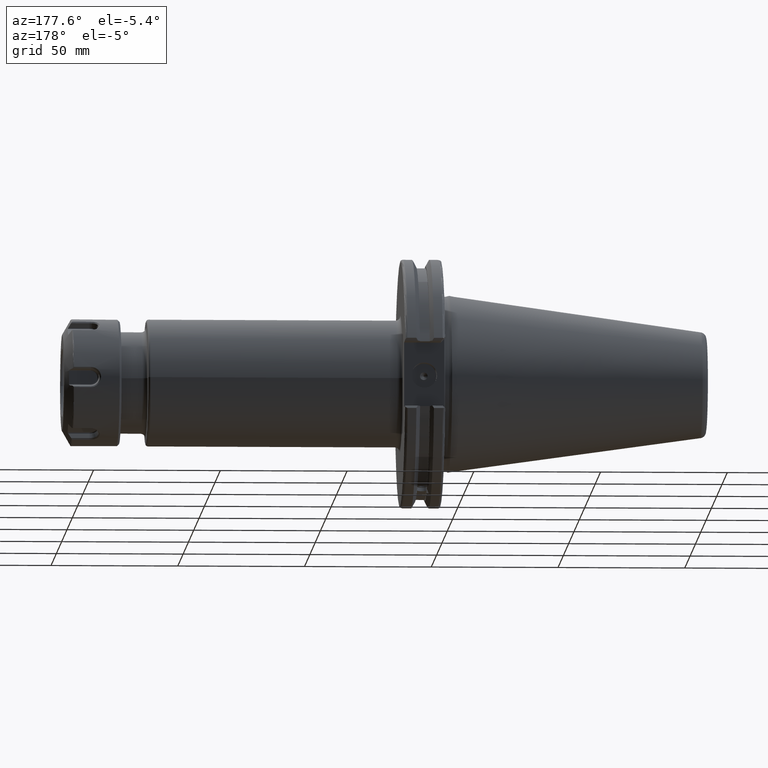
[diagram: clean part render]
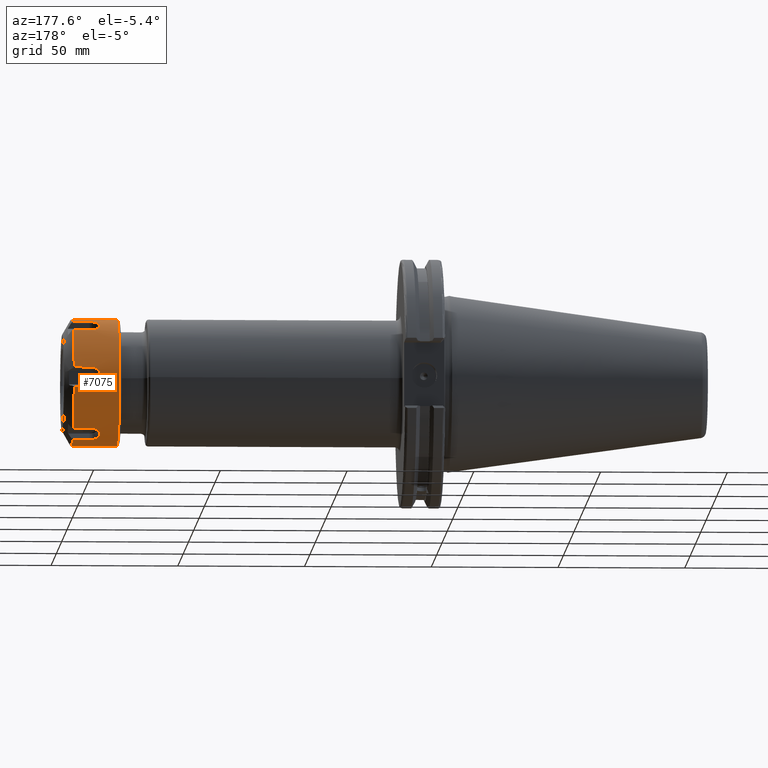
[diagram: same view with one face highlighted and labeled with its STEP entity id]
A machine part, auxiliary view. The second image highlights one B-rep face of the part: STEP entity #7075.
In plain terms, the highlighted cylindrical surface (partial cylindrical patch) has radius 25 mm, axis along (1, 0, 0).
Its self-contained STEP definition (entity closure, byte-faithful):
#5279=DIRECTION('',(1.E0,1.471777969761E-10,3.550491998354E-12));
#5280=VECTOR('',#5279,1.794722325033E1);
#5281=CARTESIAN_POINT('',(-1.045000000006E1,-2.639449818687E-9,
2.499999999994E1));
#5282=LINE('',#5281,#5280);
#5382=CARTESIAN_POINT('',(-1.045E1,0.E0,0.E0));
#5383=DIRECTION('',(-1.E0,0.E0,0.E0));
#5384=DIRECTION('',(0.E0,0.E0,1.E0));
#5385=AXIS2_PLACEMENT_3D('',#5382,#5383,#5384);
#5387=DIRECTION('',(1.E0,-1.471774747269E-10,-3.550491998354E-12));
#5388=VECTOR('',#5387,1.794722325033E1);
#5389=CARTESIAN_POINT('',(-1.045000000006E1,2.639441489808E-9,
-2.499999999994E1));
#5390=LINE('',#5389,#5388);
#5391=CARTESIAN_POINT('',(7.497223250267E0,0.E0,0.E0));
#5392=DIRECTION('',(-1.E0,0.E0,0.E0));
#5393=DIRECTION('',(0.E0,3.560136032912E-1,-9.344807725532E-1));
#5394=AXIS2_PLACEMENT_3D('',#5391,#5392,#5393);
#5396=DIRECTION('',(1.E0,2.171785744726E-10,3.807106787261E-11));
#5397=VECTOR('',#5396,6.647223598116E0);
#5398=CARTESIAN_POINT('',(8.499996521519E-1,8.900340080836E0,
-2.336201931408E1));
#5399=LINE('',#5398,#5397);
#5400=CARTESIAN_POINT('',(8.499998095868E-1,1.578193216884E1,
-1.938893026991E1));
#5401=CARTESIAN_POINT('',(5.804276598713E-1,1.578263415606E1,
-1.938810555219E1));
#5402=CARTESIAN_POINT('',(3.497745150192E-2,1.573772937441E1,
-1.942516223403E1));
#5403=CARTESIAN_POINT('',(-7.572508172466E-1,1.553618784238E1,
-1.958731775441E1));
#5404=CARTESIAN_POINT('',(-1.478671832184E0,1.520520383264E1,
-1.984649592472E1));
#5405=CARTESIAN_POINT('',(-2.102975464694E0,1.475188754799E1,
-2.018696890391E1));
#5406=CARTESIAN_POINT('',(-2.595479421681E0,1.419404177156E1,
-2.058416804918E1));
#5407=CARTESIAN_POINT('',(-2.934593644477E0,1.355377538557E1,
-2.101211162094E1));
#5408=CARTESIAN_POINT('',(-3.106329223720E0,1.285763273974E1,
-2.144557989363E1));
#5409=CARTESIAN_POINT('',(-3.105120606662E0,1.213327639742E1,
-2.186355896464E1));
#5410=CARTESIAN_POINT('',(-2.930858672389E0,1.140995114674E1,
-2.224918200149E1));
#5411=CARTESIAN_POINT('',(-2.589759746298E0,1.072020173764E1,
-2.258884274541E1));
#5412=CARTESIAN_POINT('',(-2.094180856959E0,1.009768614455E1,
-2.287285564324E1));
#5413=CARTESIAN_POINT('',(-1.470915905285E0,9.579624684318E0,
-2.309354629186E1));
#5414=CARTESIAN_POINT('',(-7.433752642320E-1,9.188952477122E0,
-2.325078642809E1));
#5415=CARTESIAN_POINT('',(4.813141884005E-2,8.951677214097E0,
-2.334266853764E1));
#5416=CARTESIAN_POINT('',(5.863145131314E-1,8.899245844633E0,
-2.336221111225E1));
#5417=CARTESIAN_POINT('',(8.499996521519E-1,8.900340080836E0,
-2.336201931408E1));
#5419=DIRECTION('',(-1.E0,7.459753134974E-11,8.763849718101E-11));
#5420=VECTOR('',#5419,6.647223440681E0);
#5421=CARTESIAN_POINT('',(7.497223250267E0,1.578193216834E1,-1.938893027049E1));
#5422=LINE('',#5421,#5420);
#5423=DIRECTION('',(1.E0,-7.310370522877E-11,-1.968159154923E-10));
#5424=VECTOR('',#5423,6.647222910959E0);
#5425=CARTESIAN_POINT('',(8.500003393086E-1,2.468227225111E1,
-3.973089042032E0));
#5426=LINE('',#5425,#5424);
#5427=CARTESIAN_POINT('',(8.500003664810E-1,2.468227225113E1,3.973089041852E0));
#5428=CARTESIAN_POINT('',(5.810062866739E-1,2.468189720453E1,3.974181346559E0));
#5429=CARTESIAN_POINT('',(3.592730096718E-2,2.469151998657E1,3.916871727499E0));
#5430=CARTESIAN_POINT('',(-7.567662073299E-1,2.473117136168E1,
3.661325365234E0));
#5431=CARTESIAN_POINT('',(-1.478328523432E0,2.479013853051E1,3.245097869916E0));
#5432=CARTESIAN_POINT('',(-2.102800323418E0,2.485834914468E1,2.682239738588E0));
#5433=CARTESIAN_POINT('',(-2.595425362412E0,2.492342539761E1,2.000428193022E0));
#5434=CARTESIAN_POINT('',(-2.934593305629E0,2.497390998204E1,1.231880301371E0));
#5435=CARTESIAN_POINT('',(-3.106344504538E0,2.500123582435E1,
4.121707151323E-1));
#5436=CARTESIAN_POINT('',(-3.105107534858E0,2.500103356012E1,
-4.242359057363E-1));
#5437=CARTESIAN_POINT('',(-2.930783158085E0,2.497332051460E1,
-1.243541171085E0));
#5438=CARTESIAN_POINT('',(-2.589570848388E0,2.492258548805E1,
-2.010792539303E0));
#5439=CARTESIAN_POINT('',(-2.093893803251E0,2.485728207190E1,
-2.691900621833E0));
#5440=CARTESIAN_POINT('',(-1.470392990893E0,2.478935587659E1,
-3.250994948892E0));
#5441=CARTESIAN_POINT('',(-7.423429645591E-1,2.473017899476E1,
-3.667985760684E0));
#5442=CARTESIAN_POINT('',(4.887753202312E-2,2.469116292488E1,
-3.919074629860E0));
#5443=CARTESIAN_POINT('',(5.865725475850E-1,2.468189497637E1,
-3.974104813249E0));
#5444=CARTESIAN_POINT('',(8.500003393086E-1,2.468227225111E1,
-3.973089042032E0));
#5446=DIRECTION('',(-1.E0,7.686741409635E-11,-2.238710456628E-10));
#5447=VECTOR('',#5446,6.647222883786E0);
#5448=CARTESIAN_POINT('',(7.497223250267E0,2.468227225062E1,3.973089043340E0));
#5449=LINE('',#5448,#5447);
#5450=DIRECTION('',(1.E0,-1.276633033488E-10,1.526081585287E-10));
#5451=VECTOR('',#5450,6.647223564864E0);
#5452=CARTESIAN_POINT('',(8.499996854036E-1,1.578193216919E1,1.938893026948E1));
#5453=LINE('',#5452,#5451);
#5454=CARTESIAN_POINT('',(8.499998036970E-1,8.900340081509E0,2.336201931397E1));
#5455=CARTESIAN_POINT('',(5.803708956983E-1,8.899281401751E0,2.336221242041E1));
#5456=CARTESIAN_POINT('',(3.488333210977E-2,8.953836079133E0,2.334184813182E1));
#5457=CARTESIAN_POINT('',(-7.573004507850E-1,9.195044819535E0,
2.324838277668E1));
#5458=CARTESIAN_POINT('',(-1.478704567830E0,9.584990917728E0,2.309133106080E1));
#5459=CARTESIAN_POINT('',(-2.102990573977E0,1.010649985152E1,2.286898690271E1));
#5460=CARTESIAN_POINT('',(-2.595503094574E0,1.072942522999E1,2.258446910560E1));
#5461=CARTESIAN_POINT('',(-2.934614312648E0,1.142019042681E1,2.224394118739E1));
#5462=CARTESIAN_POINT('',(-3.106335674569E0,1.214365658720E1,2.185779542883E1));
#5463=CARTESIAN_POINT('',(-3.105113836867E0,1.286781681815E1,2.143947058625E1));
#5464=CARTESIAN_POINT('',(-2.930837053853E0,1.356343704358E1,2.100586244501E1));
#5465=CARTESIAN_POINT('',(-2.589728324703E0,1.420245288473E1,2.057835904768E1));
#5466=CARTESIAN_POINT('',(-2.094156773157E0,1.475965194005E1,2.018126512256E1));
#5467=CARTESIAN_POINT('',(-1.470870876181E0,1.520981493432E1,1.984294899727E1));
#5468=CARTESIAN_POINT('',(-7.432837302278E-1,1.554132759682E1,
1.958323388301E1));
#5469=CARTESIAN_POINT('',(4.819708057221E-2,1.573951363505E1,1.942370735868E1));
#5470=CARTESIAN_POINT('',(5.863369508511E-1,1.578264336134E1,1.938808010744E1));
#5471=CARTESIAN_POINT('',(8.499996854036E-1,1.578193216919E1,1.938893026948E1));
#5473=DIRECTION('',(-1.E0,-1.159560992356E-10,2.115095005530E-11));
#5474=VECTOR('',#5473,6.647223446570E0);
#5475=CARTESIAN_POINT('',(7.497223250267E0,8.900340082280E0,2.336201931383E1));
#5476=LINE('',#5475,#5474);
#5477=CARTESIAN_POINT('',(7.497223250267E0,0.E0,0.E0));
#5478=DIRECTION('',(-1.E0,0.E0,0.E0));
#5479=DIRECTION('',(0.E0,0.E0,1.E0));
#5480=AXIS2_PLACEMENT_3D('',#5477,#5478,#5479);
#5827=CARTESIAN_POINT('',(7.497223250267E0,8.900340082280E0,2.336201931383E1));
#5845=CARTESIAN_POINT('',(7.497223250267E0,1.578193216834E1,1.938893027049E1));
#5851=CARTESIAN_POINT('',(7.497223250267E0,0.E0,0.E0));
#5852=DIRECTION('',(-1.E0,0.E0,0.E0));
#5853=DIRECTION('',(0.E0,6.312772867336E-1,7.755572108196E-1));
#5854=AXIS2_PLACEMENT_3D('',#5851,#5852,#5853);
#5861=CARTESIAN_POINT('',(7.497223250267E0,2.468227225062E1,3.973089043340E0));
#5879=CARTESIAN_POINT('',(7.497223250268E0,2.468227225062E1,-3.973089043340E0));
#5885=CARTESIAN_POINT('',(7.497223250267E0,0.E0,0.E0));
#5886=DIRECTION('',(-1.E0,0.E0,0.E0));
#5887=DIRECTION('',(0.E0,9.872908900248E-1,-1.589235617336E-1));
#5888=AXIS2_PLACEMENT_3D('',#5885,#5886,#5887);
#5895=CARTESIAN_POINT('',(7.497223250267E0,1.578193216834E1,-1.938893027049E1));
#5913=CARTESIAN_POINT('',(7.497223250268E0,8.900340082280E0,-2.336201931383E1));
#6365=VERTEX_POINT('',#5400);
#6366=VERTEX_POINT('',#5417);
#6390=VERTEX_POINT('',#5427);
#6391=VERTEX_POINT('',#5444);
#6415=VERTEX_POINT('',#5454);
#6416=VERTEX_POINT('',#5471);
#6453=VERTEX_POINT('',#5827);
#6457=CARTESIAN_POINT('',(7.497223250267E0,0.E0,2.5E1));
#6458=VERTEX_POINT('',#6457);
#6461=VERTEX_POINT('',#5861);
#6464=VERTEX_POINT('',#5845);
#6465=VERTEX_POINT('',#5895);
#6468=VERTEX_POINT('',#5879);
#6473=CARTESIAN_POINT('',(7.497223250267E0,0.E0,-2.5E1));
#6474=VERTEX_POINT('',#6473);
#6476=VERTEX_POINT('',#5913);
#6539=CARTESIAN_POINT('',(-1.045E1,0.E0,-2.5E1));
#6540=CARTESIAN_POINT('',(-1.045E1,0.E0,2.5E1));
#6541=VERTEX_POINT('',#6539);
#6542=VERTEX_POINT('',#6540);
#7039=CARTESIAN_POINT('',(-1.125E1,0.E0,0.E0));
#7040=DIRECTION('',(1.E0,0.E0,0.E0));
#7041=DIRECTION('',(0.E0,0.E0,-1.E0));
#7042=AXIS2_PLACEMENT_3D('',#7039,#7040,#7041);
#7043=CYLINDRICAL_SURFACE('',#7042,2.5E1);
#7044=ORIENTED_EDGE('',*,*,#7033,.T.);
#7045=ORIENTED_EDGE('',*,*,#7007,.T.);
#7047=ORIENTED_EDGE('',*,*,#7046,.F.);
#7049=ORIENTED_EDGE('',*,*,#7048,.F.);
#7051=ORIENTED_EDGE('',*,*,#7050,.F.);
#7053=ORIENTED_EDGE('',*,*,#7052,.F.);
#7055=ORIENTED_EDGE('',*,*,#7054,.F.);
#7057=ORIENTED_EDGE('',*,*,#7056,.F.);
#7059=ORIENTED_EDGE('',*,*,#7058,.F.);
#7061=ORIENTED_EDGE('',*,*,#7060,.F.);
#7063=ORIENTED_EDGE('',*,*,#7062,.F.);
#7065=ORIENTED_EDGE('',*,*,#7064,.F.);
#7067=ORIENTED_EDGE('',*,*,#7066,.F.);
#7069=ORIENTED_EDGE('',*,*,#7068,.F.);
#7071=ORIENTED_EDGE('',*,*,#7070,.F.);
#7072=ORIENTED_EDGE('',*,*,#6980,.F.);
#7073=EDGE_LOOP('',(#7044,#7045,#7047,#7049,#7051,#7053,#7055,#7057,#7059,#7061,
#7063,#7065,#7067,#7069,#7071,#7072));
#7074=FACE_OUTER_BOUND('',#7073,.F.);
#7075=ADVANCED_FACE('',(#7074),#7043,.T.);
#5386=CIRCLE('',#5385,2.5E1);
#5395=CIRCLE('',#5394,2.5E1);
#5418=B_SPLINE_CURVE_WITH_KNOTS('',3,(#5400,#5401,#5402,#5403,#5404,#5405,#5406,
#5407,#5408,#5409,#5410,#5411,#5412,#5413,#5414,#5415,#5416,#5417),
.UNSPECIFIED.,.F.,.F.,(4,1,1,1,1,1,1,1,1,1,1,1,1,1,1,4),(0.E0,6.666662857883E-2,
1.333333042479E-1,1.999999799169E-1,2.666666555859E-1,3.333333312549E-1,
4.000000069240E-1,4.666666825930E-1,5.333333582620E-1,6.000000339310E-1,
6.666667096001E-1,7.333333852691E-1,8.000000609381E-1,8.666667366072E-1,
9.333334122762E-1,1.E0),.UNSPECIFIED.);
#5445=B_SPLINE_CURVE_WITH_KNOTS('',3,(#5427,#5428,#5429,#5430,#5431,#5432,#5433,
#5434,#5435,#5436,#5437,#5438,#5439,#5440,#5441,#5442,#5443,#5444),
.UNSPECIFIED.,.F.,.F.,(4,1,1,1,1,1,1,1,1,1,1,1,1,1,1,4),(0.E0,6.666674571443E-2,
1.333334006012E-1,2.000000554881E-1,2.666667103749E-1,3.333333652617E-1,
4.000000201485E-1,4.666666750353E-1,5.333333299221E-1,5.999999848089E-1,
6.666666396957E-1,7.333332945825E-1,7.999999494694E-1,8.666666043562E-1,
9.333332592430E-1,1.E0),.UNSPECIFIED.);
#5472=B_SPLINE_CURVE_WITH_KNOTS('',3,(#5454,#5455,#5456,#5457,#5458,#5459,#5460,
#5461,#5462,#5463,#5464,#5465,#5466,#5467,#5468,#5469,#5470,#5471),
.UNSPECIFIED.,.F.,.F.,(4,1,1,1,1,1,1,1,1,1,1,1,1,1,1,4),(0.E0,6.666662666888E-2,
1.333333018743E-1,1.999999770798E-1,2.666666522852E-1,3.333333274906E-1,
4.000000026961E-1,4.666666779015E-1,5.333333531070E-1,6.000000283124E-1,
6.666667035179E-1,7.333333787233E-1,8.000000539287E-1,8.666667291342E-1,
9.333334043396E-1,1.E0),.UNSPECIFIED.);
#5481=CIRCLE('',#5480,2.5E1);
#5855=CIRCLE('',#5854,2.5E1);
#5889=CIRCLE('',#5888,2.5E1);
#6980=EDGE_CURVE('',#6542,#6458,#5282,.T.);
#7007=EDGE_CURVE('',#6541,#6474,#5390,.T.);
#7033=EDGE_CURVE('',#6542,#6541,#5386,.T.);
#7046=EDGE_CURVE('',#6476,#6474,#5395,.T.);
#7048=EDGE_CURVE('',#6366,#6476,#5399,.T.);
#7050=EDGE_CURVE('',#6365,#6366,#5418,.T.);
#7052=EDGE_CURVE('',#6465,#6365,#5422,.T.);
#7054=EDGE_CURVE('',#6468,#6465,#5889,.T.);
#7056=EDGE_CURVE('',#6391,#6468,#5426,.T.);
#7058=EDGE_CURVE('',#6390,#6391,#5445,.T.);
#7060=EDGE_CURVE('',#6461,#6390,#5449,.T.);
#7062=EDGE_CURVE('',#6464,#6461,#5855,.T.);
#7064=EDGE_CURVE('',#6416,#6464,#5453,.T.);
#7066=EDGE_CURVE('',#6415,#6416,#5472,.T.);
#7068=EDGE_CURVE('',#6453,#6415,#5476,.T.);
#7070=EDGE_CURVE('',#6458,#6453,#5481,.T.);